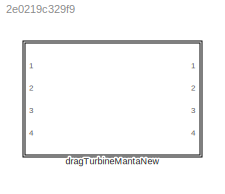
MODEL slx_2e0219c329f9
KIND library
CONFIG AbsTol = auto
CONFIG EnableMultiTasking = off
CONFIG FixedStep = auto
CONFIG MaxStep = auto
CONFIG MinStep = auto
CONFIG RelTol = 1e-3
CONFIG SampleTimeConstraint = Unconstrained
CONFIG SolverName = VariableStepAuto
CONFIG StartTime = 0.0
CONFIG StopTime = 10.0
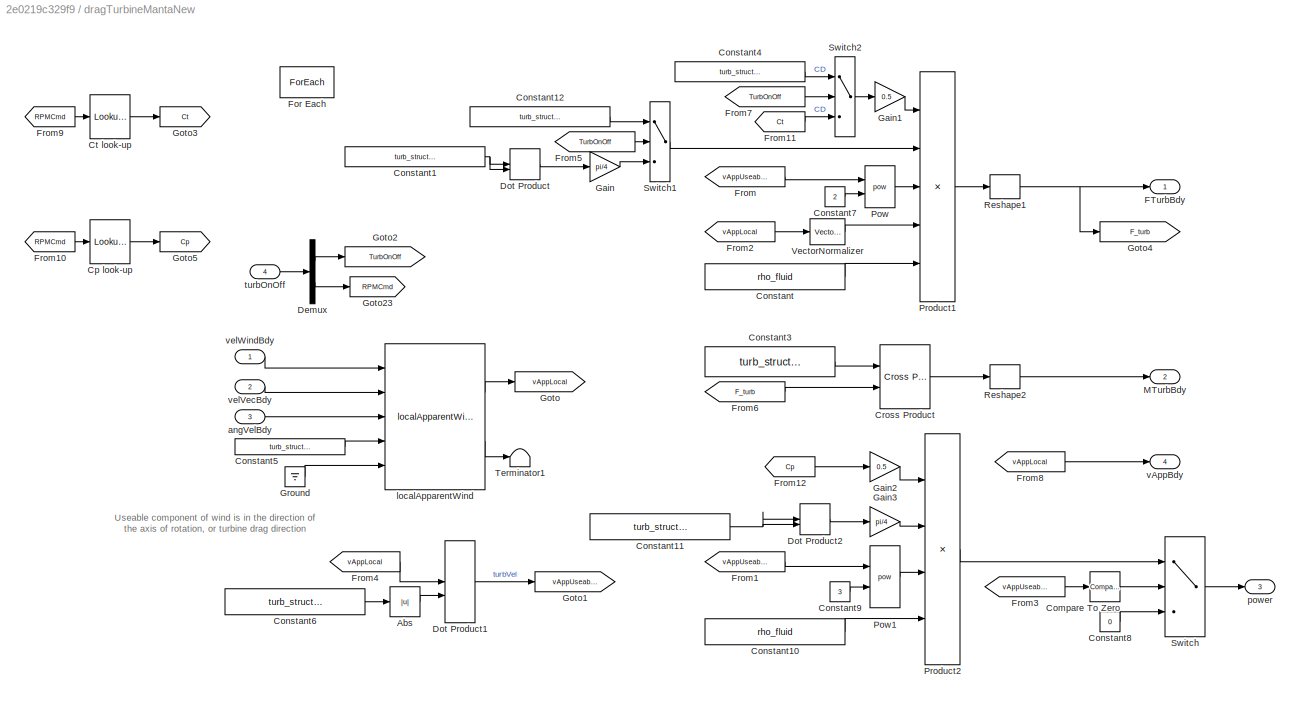
BLOCK [SubSystem] dragTurbineMantaNew
  Ports = [4, 4]
  RequestExecContextInheritance = off
  TreatAsAtomicUnit = on
BLOCK [Abs] dragTurbineMantaNew/Abs
  SaturateOnIntegerOverflow = off
BLOCK [Reference] dragTurbineMantaNew/Compare To Zero  REF=simulink/Logic and Bit
Operations/Compare
To Zero
  Ports = [1, 1]
  SourceBlock = simulink/Logic and Bit\nOperations/Compare\nTo Zero
  SourceProductBaseCode = SL
  SourceType = Compare To Zero
BLOCK [Constant] dragTurbineMantaNew/Constant
  Value = rho_fluid
BLOCK [Constant] dragTurbineMantaNew/Constant1
  Value = turb_struct.diameter.Value
  VectorParams1D = off
BLOCK [Constant] dragTurbineMantaNew/Constant10
  Value = rho_fluid
BLOCK [Constant] dragTurbineMantaNew/Constant11
  Value = turb_struct.diameter.Value
  VectorParams1D = off
BLOCK [Constant] dragTurbineMantaNew/Constant12
  Value = turb_struct.staticArea.Value
  VectorParams1D = off
BLOCK [Constant] dragTurbineMantaNew/Constant3
  Value = turb_struct.momentArm.Value
BLOCK [Constant] dragTurbineMantaNew/Constant4
  Value = turb_struct.staticCD.Value
BLOCK [Constant] dragTurbineMantaNew/Constant5
  Value = turb_struct.attachPtVec.Value
BLOCK [Constant] dragTurbineMantaNew/Constant6
  Value = turb_struct.axisUnitVec.Value
BLOCK [Constant] dragTurbineMantaNew/Constant7
  Value = 2
BLOCK [Constant] dragTurbineMantaNew/Constant8
  Value = 0
BLOCK [Constant] dragTurbineMantaNew/Constant9
  Value = 3
BLOCK [Lookup_n-D] dragTurbineMantaNew/Cp look-up
  BreakpointsForDimension1 = turb_struct.RPMref.Value
  InputPortMap = u0
  InternalRulePriority = Speed
  NumberOfTableDimensions = 1
  Ports = [1, 1]
  RndMeth = Simplest
  Table = turb_struct.CpLookup.Value
BLOCK [Reference] dragTurbineMantaNew/Cross Product  REF=vrlib/Utilities/Cross Product
  Ports = [2, 1]
  SourceBlock = vrlib/Utilities/Cross Product
  SourceProductBaseCode = SL
  SourceType = Cross Product
BLOCK [Lookup_n-D] dragTurbineMantaNew/Ct look-up
  BreakpointsForDimension1 = turb_struct.RPMref.Value
  InputPortMap = u0
  InternalRulePriority = Speed
  NumberOfTableDimensions = 1
  Ports = [1, 1]
  RndMeth = Simplest
  Table = turb_struct.CtLookup.Value
BLOCK [Demux] dragTurbineMantaNew/Demux
  Outputs = 2
  Ports = [1, 2]
BLOCK [DotProduct] dragTurbineMantaNew/Dot Product
  OutDataTypeStr = Inherit: Inherit via internal rule
BLOCK [DotProduct] dragTurbineMantaNew/Dot Product1
  OutDataTypeStr = Inherit: Inherit via internal rule
BLOCK [DotProduct] dragTurbineMantaNew/Dot Product2
  OutDataTypeStr = Inherit: Inherit via internal rule
BLOCK [Outport] dragTurbineMantaNew/FTurbBdy
  ConcatenationDimension = 2
  PortDimensions = [3,1]
  VectorParamsAs1DForOutWhenUnconnected = off
BLOCK [ForEach] dragTurbineMantaNew/For Each
  DisableCoverage = on
  IterateSubsysMaskParameter = off,on
  Ports = []
  SubsysMaskParameterIterationDimension = 1,2
  SubsysMaskParameterIterationStepSize = 1,1
BLOCK [From] dragTurbineMantaNew/From
  GotoTag = vAppUseable
BLOCK [From] dragTurbineMantaNew/From1
  GotoTag = vAppUseable
BLOCK [From] dragTurbineMantaNew/From10
  GotoTag = RPMCmd
BLOCK [From] dragTurbineMantaNew/From11
  GotoTag = Ct
BLOCK [From] dragTurbineMantaNew/From12
  GotoTag = Cp
BLOCK [From] dragTurbineMantaNew/From2
  GotoTag = vAppLocal
BLOCK [From] dragTurbineMantaNew/From3
  GotoTag = vAppUseable
BLOCK [From] dragTurbineMantaNew/From4
  GotoTag = vAppLocal
BLOCK [From] dragTurbineMantaNew/From5
  GotoTag = TurbOnOff
BLOCK [From] dragTurbineMantaNew/From6
  GotoTag = F_turb
BLOCK [From] dragTurbineMantaNew/From7
  GotoTag = TurbOnOff
BLOCK [From] dragTurbineMantaNew/From8
  GotoTag = vAppLocal
BLOCK [From] dragTurbineMantaNew/From9
  GotoTag = RPMCmd
BLOCK [Gain] dragTurbineMantaNew/Gain
  Gain = pi/4
BLOCK [Gain] dragTurbineMantaNew/Gain1
  Gain = 0.5
BLOCK [Gain] dragTurbineMantaNew/Gain2
  Gain = 0.5
BLOCK [Gain] dragTurbineMantaNew/Gain3
  Gain = pi/4
BLOCK [Goto] dragTurbineMantaNew/Goto
  GotoTag = vAppLocal
BLOCK [Goto] dragTurbineMantaNew/Goto1
  GotoTag = vAppUseable
BLOCK [Goto] dragTurbineMantaNew/Goto2
  GotoTag = TurbOnOff
BLOCK [Goto] dragTurbineMantaNew/Goto23
  GotoTag = RPMCmd
BLOCK [Goto] dragTurbineMantaNew/Goto3
  GotoTag = Ct
BLOCK [Goto] dragTurbineMantaNew/Goto4
  GotoTag = F_turb
BLOCK [Goto] dragTurbineMantaNew/Goto5
  GotoTag = Cp
BLOCK [Ground] dragTurbineMantaNew/Ground
BLOCK [Outport] dragTurbineMantaNew/MTurbBdy
  ConcatenationDimension = 2
  Port = 2
  PortDimensions = [3,1]
  VectorParamsAs1DForOutWhenUnconnected = off
BLOCK [Math] dragTurbineMantaNew/Pow
  Operator = pow
  Ports = [2, 1]
  RndMeth = Zero
  SignedPower = on
BLOCK [Math] dragTurbineMantaNew/Pow1
  Operator = pow
  Ports = [2, 1]
  RndMeth = Zero
  SignedPower = on
BLOCK [Product] dragTurbineMantaNew/Product1
  Inputs = 5
  Ports = [5, 1]
BLOCK [Product] dragTurbineMantaNew/Product2
  Inputs = 4
  Ports = [4, 1]
BLOCK [Reshape] dragTurbineMantaNew/Reshape1
  OutputDimensionality = Column vector (2-D)
  Ports = [1, 1]
BLOCK [Reshape] dragTurbineMantaNew/Reshape2
  OutputDimensionality = Column vector (2-D)
  Ports = [1, 1]
BLOCK [Switch] dragTurbineMantaNew/Switch
  Criteria = u2 > Threshold
  InputSameDT = off
  SaturateOnIntegerOverflow = off
BLOCK [Switch] dragTurbineMantaNew/Switch1
  Criteria = u2 > Threshold
  InputSameDT = off
  SaturateOnIntegerOverflow = off
  Threshold = .5
BLOCK [Switch] dragTurbineMantaNew/Switch2
  Criteria = u2 > Threshold
  InputSameDT = off
  SaturateOnIntegerOverflow = off
  Threshold = .5
BLOCK [Terminator] dragTurbineMantaNew/Terminator1
BLOCK [Reference] dragTurbineMantaNew/VectorNormalizer   REF=vectorNormalizer_ul/VectorNormalizer

  Ports = [1, 1]
  SourceBlock = vectorNormalizer_ul/VectorNormalizer
  SourceType = SubSystem
BLOCK [Inport] dragTurbineMantaNew/angVelBdy
  Port = 3
BLOCK [Reference] dragTurbineMantaNew/localApparentWind  REF=localApparentWind_ul/localApparentWind
  Ports = [5, 2]
  SourceBlock = localApparentWind_ul/localApparentWind
  SourceType = SubSystem
BLOCK [Outport] dragTurbineMantaNew/power
  ConcatenationDimension = 2
  Port = 3
  PortDimensions = [1,1]
  VectorParamsAs1DForOutWhenUnconnected = off
BLOCK [Inport] dragTurbineMantaNew/turbOnOff
  Port = 4
BLOCK [Outport] dragTurbineMantaNew/vAppBdy
  ConcatenationDimension = 2
  Port = 4
  PortDimensions = [3,1]
  VectorParamsAs1DForOutWhenUnconnected = off
BLOCK [Inport] dragTurbineMantaNew/velVecBdy
  Port = 2
BLOCK [Inport] dragTurbineMantaNew/velWindBdy
  Partition = on
  PartitionDimension = 2
  PartitionOffset = 0
  PartitionWidth = 1
ANNOTATION dragTurbineMantaNew: Useable component of wind is in the direction of the axis of rotation, or turbine drag direction
LINE dragTurbineMantaNew/Abs:1 -> dragTurbineMantaNew/Dot Product1:2
LINE dragTurbineMantaNew/Compare To Zero:1 -> dragTurbineMantaNew/Switch:2
LINE dragTurbineMantaNew/Constant10:1 -> dragTurbineMantaNew/Product2:4
NET dragTurbineMantaNew/Constant11:1 -> dragTurbineMantaNew/Dot Product2:1, dragTurbineMantaNew/Dot Product2:2
LINE dragTurbineMantaNew/Constant12:1 -> dragTurbineMantaNew/Switch1:1
NET dragTurbineMantaNew/Constant1:1 -> dragTurbineMantaNew/Dot Product:1, dragTurbineMantaNew/Dot Product:2
LINE dragTurbineMantaNew/Constant3:1 -> dragTurbineMantaNew/Cross Product:1
LINE dragTurbineMantaNew/Constant4:1 -> dragTurbineMantaNew/Switch2:1
LINE dragTurbineMantaNew/Constant5:1 -> dragTurbineMantaNew/localApparentWind:4
LINE dragTurbineMantaNew/Constant6:1 -> dragTurbineMantaNew/Abs:1
LINE dragTurbineMantaNew/Constant7:1 -> dragTurbineMantaNew/Pow:2
LINE dragTurbineMantaNew/Constant8:1 -> dragTurbineMantaNew/Switch:3
LINE dragTurbineMantaNew/Constant9:1 -> dragTurbineMantaNew/Pow1:2
LINE dragTurbineMantaNew/Constant:1 -> dragTurbineMantaNew/Product1:5
LINE dragTurbineMantaNew/Cp look-up:1 -> dragTurbineMantaNew/Goto5:1
LINE dragTurbineMantaNew/Cross Product:1 -> dragTurbineMantaNew/Reshape2:1
LINE dragTurbineMantaNew/Ct look-up:1 -> dragTurbineMantaNew/Goto3:1
LINE dragTurbineMantaNew/Demux:1 -> dragTurbineMantaNew/Goto2:1
LINE dragTurbineMantaNew/Demux:2 -> dragTurbineMantaNew/Goto23:1
LINE dragTurbineMantaNew/Dot Product1:1 -> dragTurbineMantaNew/Goto1:1
LINE dragTurbineMantaNew/Dot Product2:1 -> dragTurbineMantaNew/Gain3:1
LINE dragTurbineMantaNew/Dot Product:1 -> dragTurbineMantaNew/Gain:1
LINE dragTurbineMantaNew/From10:1 -> dragTurbineMantaNew/Cp look-up:1
LINE dragTurbineMantaNew/From11:1 -> dragTurbineMantaNew/Switch2:3
LINE dragTurbineMantaNew/From12:1 -> dragTurbineMantaNew/Gain2:1
LINE dragTurbineMantaNew/From1:1 -> dragTurbineMantaNew/Pow1:1
LINE dragTurbineMantaNew/From2:1 -> dragTurbineMantaNew/VectorNormalizer :1
LINE dragTurbineMantaNew/From3:1 -> dragTurbineMantaNew/Compare To Zero:1
LINE dragTurbineMantaNew/From4:1 -> dragTurbineMantaNew/Dot Product1:1
LINE dragTurbineMantaNew/From5:1 -> dragTurbineMantaNew/Switch1:2
LINE dragTurbineMantaNew/From6:1 -> dragTurbineMantaNew/Cross Product:2
LINE dragTurbineMantaNew/From7:1 -> dragTurbineMantaNew/Switch2:2
LINE dragTurbineMantaNew/From8:1 -> dragTurbineMantaNew/vAppBdy:1
LINE dragTurbineMantaNew/From9:1 -> dragTurbineMantaNew/Ct look-up:1
LINE dragTurbineMantaNew/From:1 -> dragTurbineMantaNew/Pow:1
LINE dragTurbineMantaNew/Gain1:1 -> dragTurbineMantaNew/Product1:1
LINE dragTurbineMantaNew/Gain2:1 -> dragTurbineMantaNew/Product2:1
LINE dragTurbineMantaNew/Gain3:1 -> dragTurbineMantaNew/Product2:2
LINE dragTurbineMantaNew/Gain:1 -> dragTurbineMantaNew/Switch1:3
LINE dragTurbineMantaNew/Ground:1 -> dragTurbineMantaNew/localApparentWind:5
LINE dragTurbineMantaNew/Pow1:1 -> dragTurbineMantaNew/Product2:3
LINE dragTurbineMantaNew/Pow:1 -> dragTurbineMantaNew/Product1:3
LINE dragTurbineMantaNew/Product1:1 -> dragTurbineMantaNew/Reshape1:1
LINE dragTurbineMantaNew/Product2:1 -> dragTurbineMantaNew/Switch:1
NET dragTurbineMantaNew/Reshape1:1 -> dragTurbineMantaNew/FTurbBdy:1, dragTurbineMantaNew/Goto4:1
LINE dragTurbineMantaNew/Reshape2:1 -> dragTurbineMantaNew/MTurbBdy:1
LINE dragTurbineMantaNew/Switch1:1 -> dragTurbineMantaNew/Product1:2
LINE dragTurbineMantaNew/Switch2:1 -> dragTurbineMantaNew/Gain1:1
LINE dragTurbineMantaNew/Switch:1 -> dragTurbineMantaNew/power:1
LINE dragTurbineMantaNew/VectorNormalizer :1 -> dragTurbineMantaNew/Product1:4
LINE dragTurbineMantaNew/angVelBdy:1 -> dragTurbineMantaNew/localApparentWind:3
LINE dragTurbineMantaNew/localApparentWind:1 -> dragTurbineMantaNew/Goto:1
LINE dragTurbineMantaNew/localApparentWind:2 -> dragTurbineMantaNew/Terminator1:1
LINE dragTurbineMantaNew/turbOnOff:1 -> dragTurbineMantaNew/Demux:1
LINE dragTurbineMantaNew/velVecBdy:1 -> dragTurbineMantaNew/localApparentWind:2
LINE dragTurbineMantaNew/velWindBdy:1 -> dragTurbineMantaNew/localApparentWind:1
note: NET lines group one-source signal fan-out (src -> all destinations, sorted); 1:1 wires keep LINE
